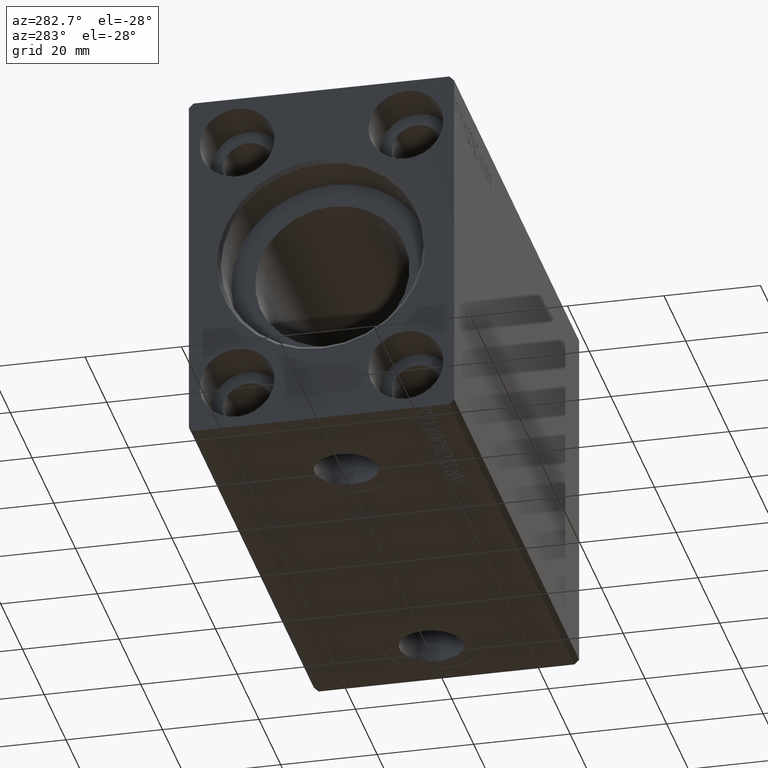
[diagram: clean part render]
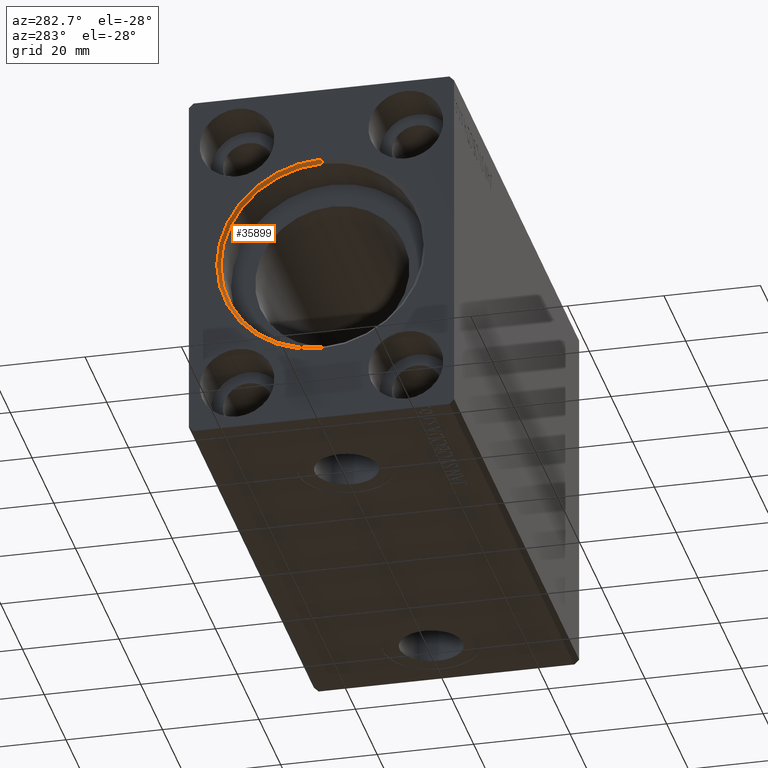
[diagram: same view with one face highlighted and labeled with its STEP entity id]
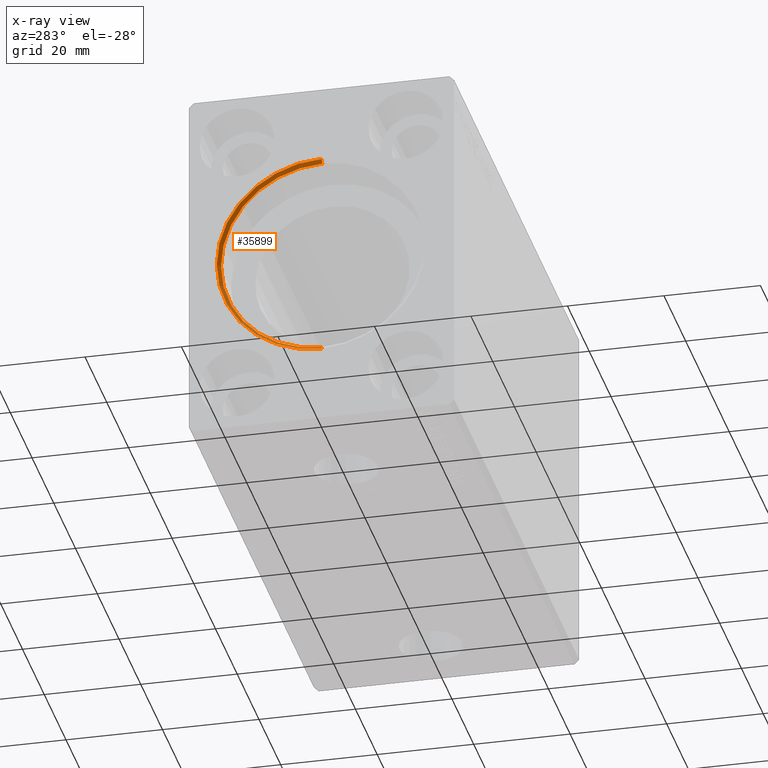
[diagram: x-ray of the same camera — body ghosted, the highlighted face saturated]
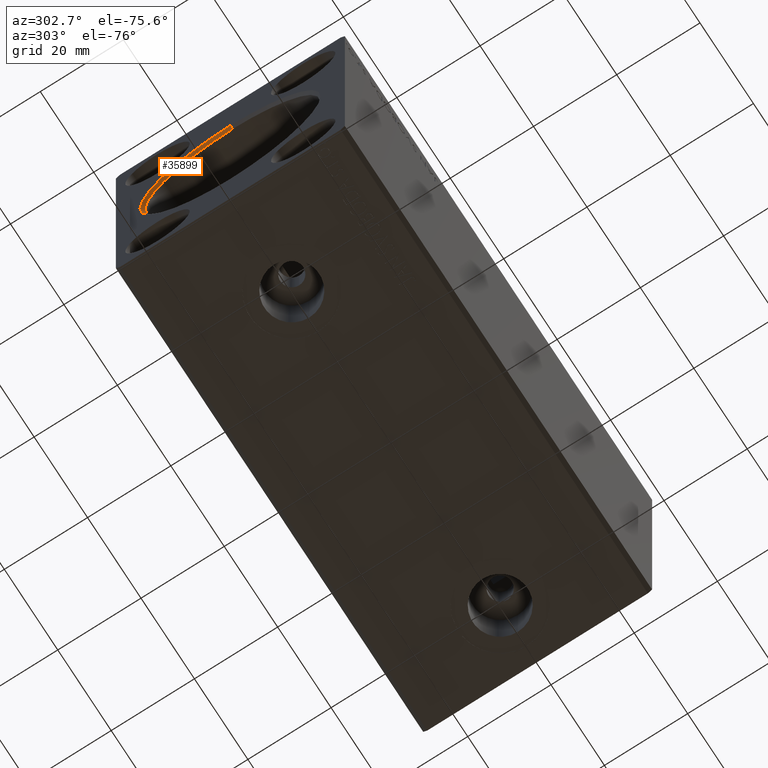
[diagram: same view with one face highlighted and labeled with its STEP entity id]
A machine part, auxiliary view. The second image highlights one B-rep face of the part: STEP entity #35899.
The next image is the same camera in x-ray: the body ghosted, the highlighted face saturated — about 0% of this face is hidden behind the body in this view.
A second angle (auxiliary view) of the same face is appended — the face is thin or edge-on in the first view.
In plain terms, the highlighted conical surface has half-angle 45 deg.
Its self-contained STEP definition (entity closure, byte-faithful):
#1245 = DIRECTION ( 'NONE',  ( 0.000000000000000000, 0.000000000000000000, 1.000000000000000000 ) ) ;
#1361 = VERTEX_POINT ( 'NONE', #12460 ) ;
#1818 = ORIENTED_EDGE ( 'NONE', *, *, #13611, .T. ) ;
#2135 = CIRCLE ( 'NONE', #13162, 21.70000000000003837 ) ;
#2970 = ORIENTED_EDGE ( 'NONE', *, *, #29122, .F. ) ;
#3172 = VERTEX_POINT ( 'NONE', #20948 ) ;
#3621 = EDGE_LOOP ( 'NONE', ( #2970, #18445, #1818, #37866 ) ) ;
#4164 = CARTESIAN_POINT ( 'NONE',  ( 0.7000000000000443645, 0.000000000000000000, 21.00000000000000000 ) ) ;
#4262 = VERTEX_POINT ( 'NONE', #4164 ) ;
#4969 = CARTESIAN_POINT ( 'NONE',  ( 0.000000000000000000, 0.000000000000000000, 0.000000000000000000 ) ) ;
#8153 = DIRECTION ( 'NONE',  ( -1.000000000000000000, 0.000000000000000000, 0.000000000000000000 ) ) ;
#8563 = CARTESIAN_POINT ( 'NONE',  ( 0.7000000000000443645, 0.000000000000000000, 21.00000000000000000 ) ) ;
#12460 = CARTESIAN_POINT ( 'NONE',  ( 0.7000000000000443645, 2.571758278209441661E-15, -21.00000000000000000 ) ) ;
#12952 = DIRECTION ( 'NONE',  ( -0.7071067811865511255, 8.659560562354889717E-17, -0.7071067811865440200 ) ) ;
#13162 = AXIS2_PLACEMENT_3D ( 'NONE', #4969, #20706, #21563 ) ;
#13611 = EDGE_CURVE ( 'NONE', #4262, #3172, #23873, .T. ) ;
#14611 = CARTESIAN_POINT ( 'NONE',  ( 0.7000000000000443645, 0.000000000000000000, 0.000000000000000000 ) ) ;
#17832 = AXIS2_PLACEMENT_3D ( 'NONE', #14611, #8153, #1245 ) ;
#18445 = ORIENTED_EDGE ( 'NONE', *, *, #33814, .F. ) ;
#19416 = LINE ( 'NONE', #32573, #28806 ) ;
#20706 = DIRECTION ( 'NONE',  ( 1.000000000000000000, 0.000000000000000000, 0.000000000000000000 ) ) ;
#20862 = FACE_OUTER_BOUND ( 'NONE', #3621, .T. ) ;
#20948 = CARTESIAN_POINT ( 'NONE',  ( 0.000000000000000000, 0.000000000000000000, 21.70000000000003837 ) ) ;
#21563 = DIRECTION ( 'NONE',  ( 0.000000000000000000, 0.000000000000000000, -1.000000000000000000 ) ) ;
#23873 = LINE ( 'NONE', #8563, #29962 ) ;
#24124 = DIRECTION ( 'NONE',  ( -1.000000000000000000, 0.000000000000000000, 0.000000000000000000 ) ) ;
#25368 = DIRECTION ( 'NONE',  ( -0.7071067811865511255, 0.000000000000000000, 0.7071067811865440200 ) ) ;
#28806 = VECTOR ( 'NONE', #12952, 1000.000000000000000 ) ;
#28984 = CARTESIAN_POINT ( 'NONE',  ( 0.000000000000000000, 2.657483554149761471E-15, -21.70000000000003837 ) ) ;
#29122 = EDGE_CURVE ( 'NONE', #1361, #34210, #19416, .T. ) ;
#29962 = VECTOR ( 'NONE', #25368, 1000.000000000000000 ) ;
#30885 = AXIS2_PLACEMENT_3D ( 'NONE', #37918, #24124, #31232 ) ;
#31232 = DIRECTION ( 'NONE',  ( 0.000000000000000000, 0.000000000000000000, -1.000000000000000000 ) ) ;
#32573 = CARTESIAN_POINT ( 'NONE',  ( 0.7000000000000443645, 2.571758278209441661E-15, -21.00000000000000000 ) ) ;
#33814 = EDGE_CURVE ( 'NONE', #4262, #1361, #35730, .T. ) ;
#34210 = VERTEX_POINT ( 'NONE', #28984 ) ;
#35730 = CIRCLE ( 'NONE', #30885, 21.00000000000000000 ) ;
#35899 = ADVANCED_FACE ( 'NONE', ( #20862 ), #36419, .F. ) ;
#36419 = CONICAL_SURFACE ( 'NONE', #17832, 21.00000000000000000, 0.7853981633974432830 ) ;
#37866 = ORIENTED_EDGE ( 'NONE', *, *, #41287, .F. ) ;
#37918 = CARTESIAN_POINT ( 'NONE',  ( 0.7000000000000443645, 0.000000000000000000, 0.000000000000000000 ) ) ;
#41287 = EDGE_CURVE ( 'NONE', #34210, #3172, #2135, .T. ) ;